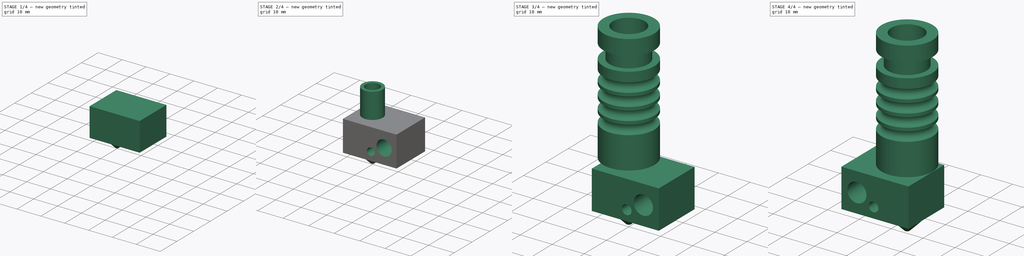
[diagram: build sequence overview — one tinted view per stage of 4, left to right]
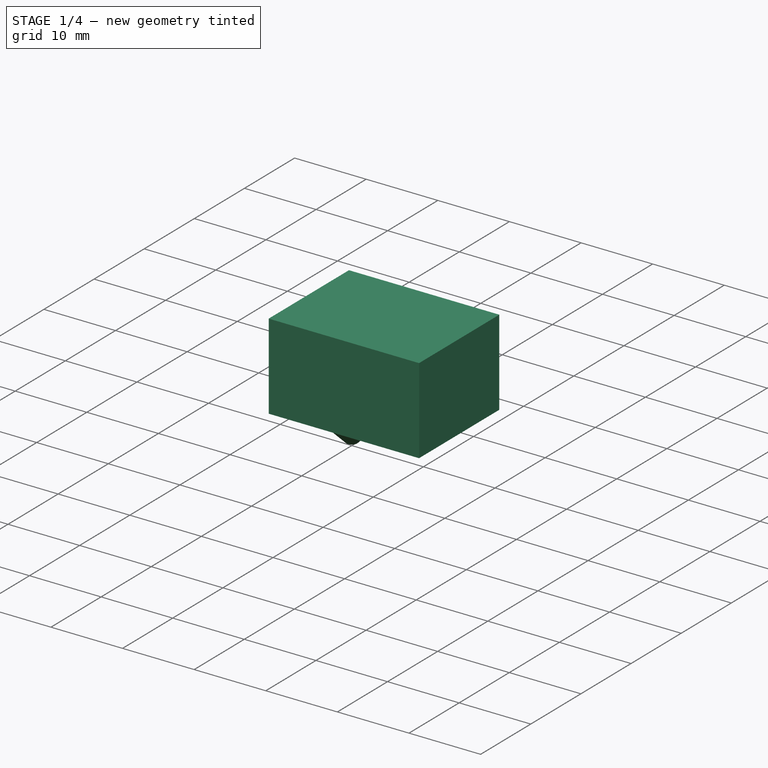
[diagram: stage 1 of 4 — iso view after this stage's code; geometry added in this stage tinted green]
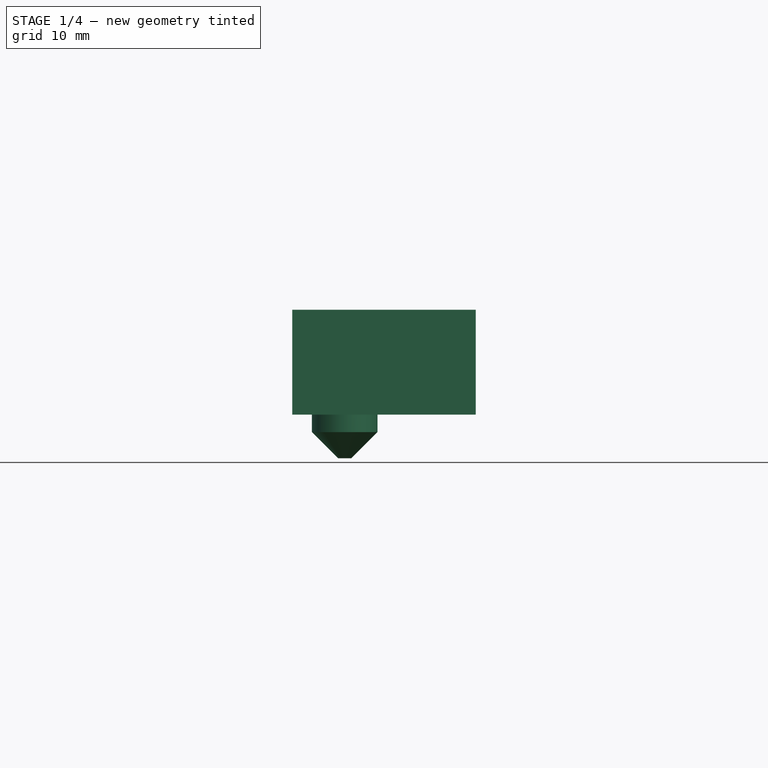
[diagram: stage 1 of 4 — front view after this stage's code; geometry added in this stage tinted green]
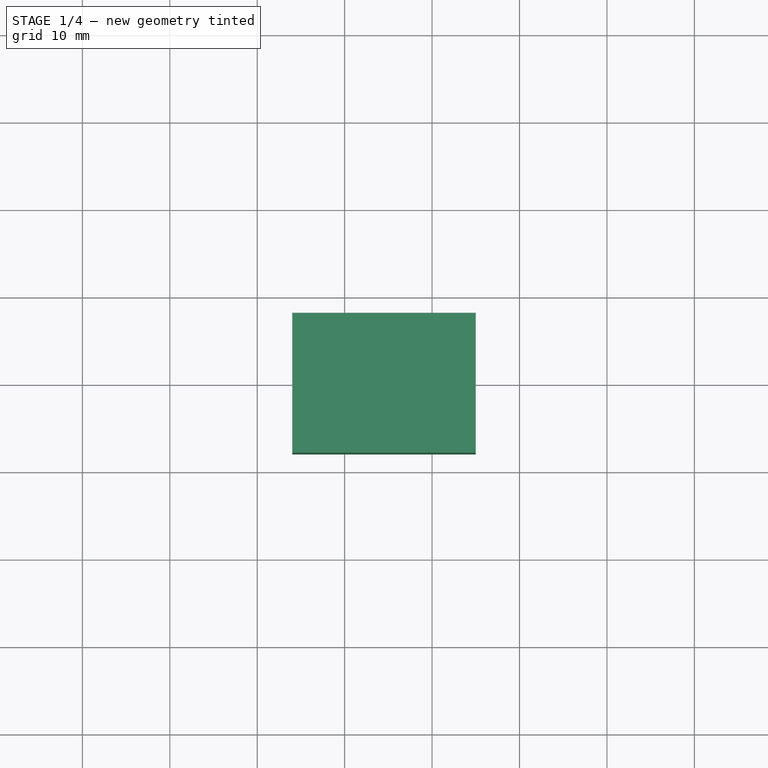
[diagram: stage 1 of 4 — top view after this stage's code; geometry added in this stage tinted green]
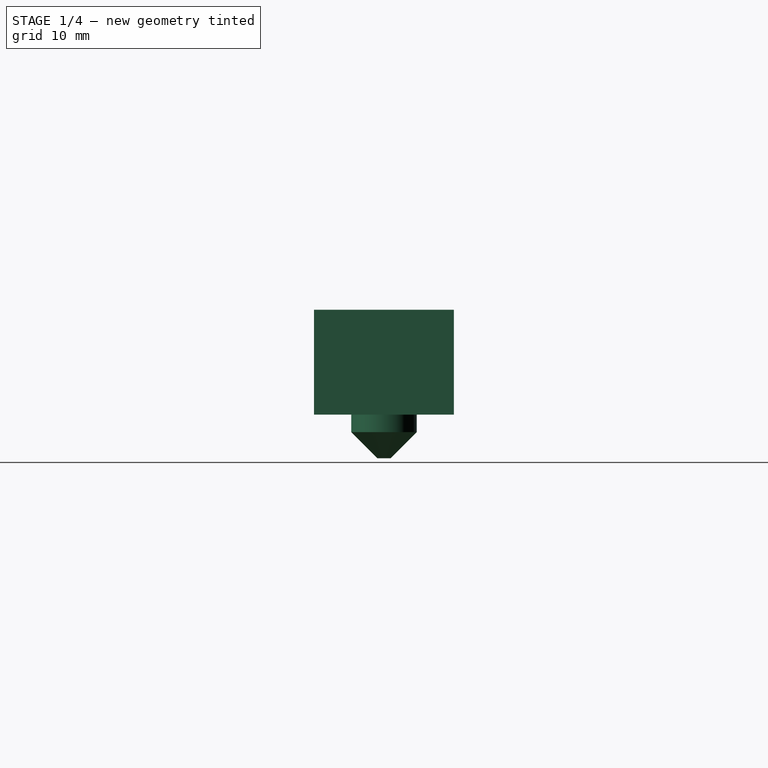
[diagram: stage 1 of 4 — right view after this stage's code; geometry added in this stage tinted green]
FCSTD DOCUMENT  (FreeCAD 0.15R3904 (Git))
Label: hotend
License: CC-BY 3.0
LicenseURL: http://creativecommons.org/licenses/by/3.0/
objects: Sketcher::SketchObject×6, PartDesign::Pocket×3, App::DocumentObjectGroup×3, Part::FeaturePython×3, PartDesign::Pad×2, Part::Box×1, PartDesign::Revolution×1, PartDesign::Chamfer×1, Part::MultiFuse×1
note: 24 computed .brp shape members not serialized (recipe doc carries the construction recipe); baked Part::Feature solids carry a one-line shape summary decoded from their .brp

FEATURE [Part::Box] Box  label="Cubo001"
  Height = 12
  Length = 21
  Placement = pos=(-6,-8,-15) rot=(0,0,1;0rad)
  Width = 16
FEATURE [PartDesign::Pad] Pad
  Length = 5
  Length2 = 100
  Placement = pos=(-6,-8,-15) rot=(0,0,1;0rad)
  Sketch = -> Sketch
  Type = 0
FEATURE [PartDesign::Chamfer] Chamfer
  Base = -> Pad [Edge15]
  Placement = pos=(-6,-8,-15) rot=(0,0,1;0rad)
  Size = 3
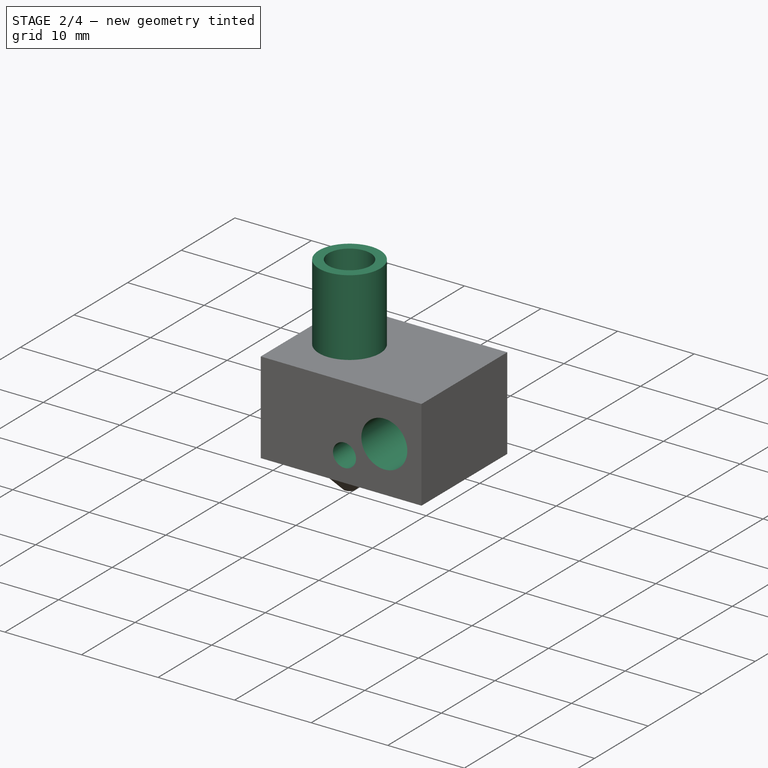
[diagram: stage 2 of 4 — iso view after this stage's code; geometry added in this stage tinted green]
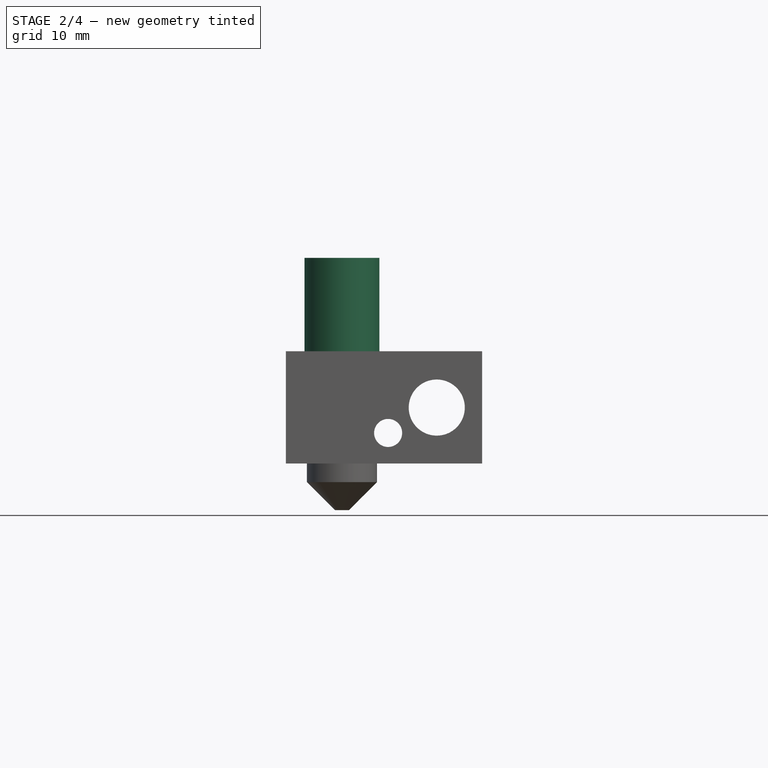
[diagram: stage 2 of 4 — front view after this stage's code; geometry added in this stage tinted green]
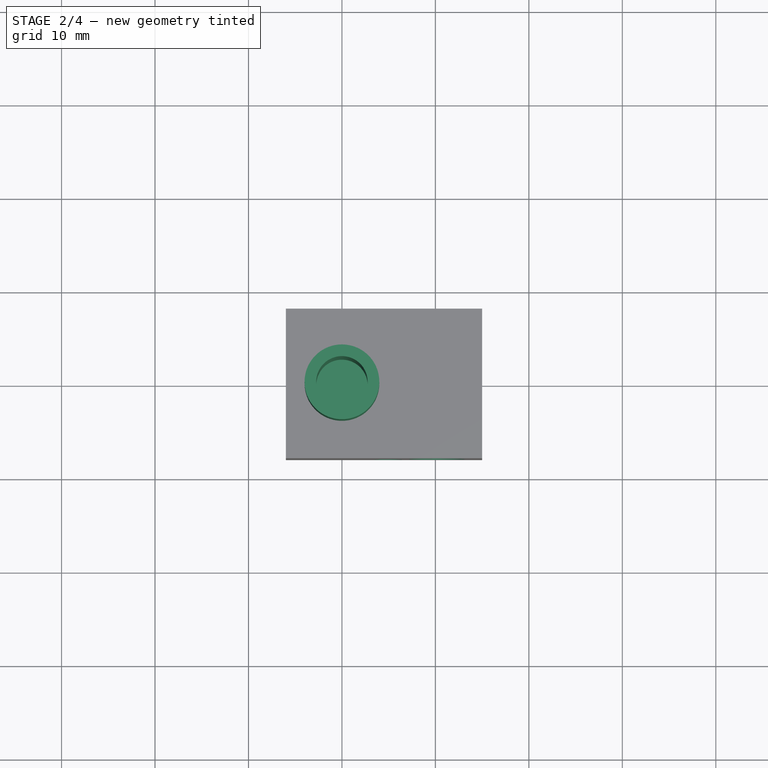
[diagram: stage 2 of 4 — top view after this stage's code; geometry added in this stage tinted green]
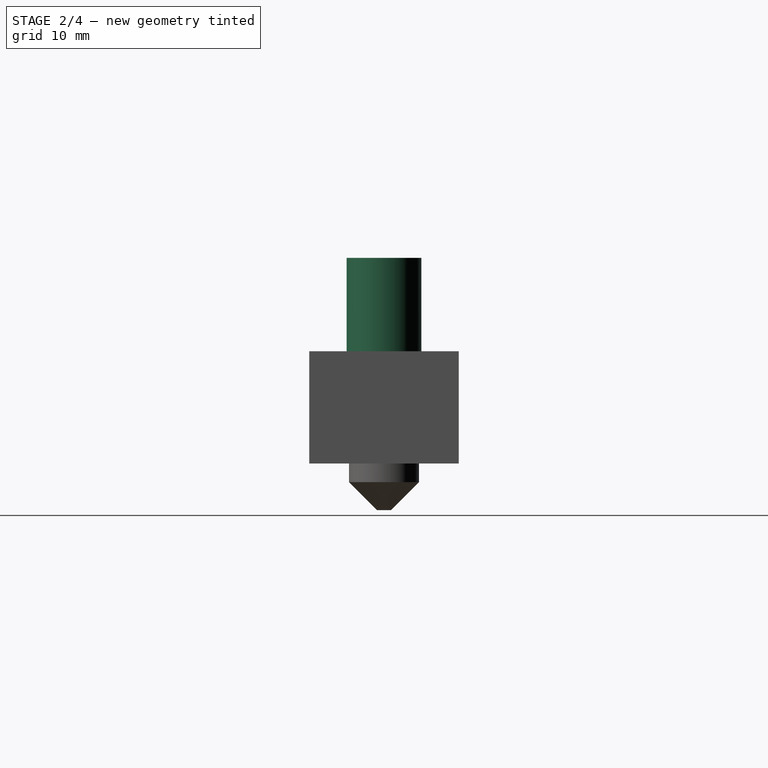
[diagram: stage 2 of 4 — right view after this stage's code; geometry added in this stage tinted green]
FEATURE [Sketcher::SketchObject] Sketch002
  ExternalGeometry = -> [Chamfer]
  Placement = pos=(-6,-8,-3) rot=(0,0,1;0rad)
  Support = -> Chamfer [Face9]
  sketch-geometry (3):
    g0: LineSegment [constr] StartX=6 StartY=16 StartZ=0 EndX=6 EndY=8 EndZ=0
    g1: LineSegment [constr] StartX=6 StartY=8 StartZ=0 EndX=6 EndY=0 EndZ=0
    g2: Circle CenterX=6 CenterY=8 CenterZ=0 NormalX=0 NormalY=0 NormalZ=1 Radius=4
  constraints (9):
    c: PointOnObject(g0,g-3)
    c: Vertical(g0)
    c: Coincident(g0,g1)
    c: PointOnObject(g1,g-4)
    c: Vertical(g1)
    c: Equal(g1,g0)
    c: Coincident(g2,g0)
    c: Distance(g0,g-5) = 6
    c: Radius(g2) = 4
FEATURE [PartDesign::Pad] Pad001
  Length = 10
  Length2 = 100
  Placement = pos=(-6,-8,-15) rot=(0,0,1;0rad)
  Sketch = -> Sketch002
  Type = 0
FEATURE [Sketcher::SketchObject] Sketch003
  Placement = pos=(-6,8,-15) rot=(0,0.707107,0.707107;3.14159rad)
  Support = -> Pad001 [Face5]
  sketch-geometry (2):
    g0: Circle CenterX=-16.1455 CenterY=5.9778 CenterZ=0 NormalX=0 NormalY=0 NormalZ=1 Radius=3
    g1: Circle CenterX=-10.941 CenterY=3.2623 CenterZ=0 NormalX=0 NormalY=0 NormalZ=1 Radius=1.5
  constraints (2):
    c: Radius(g0) = 3
    c: Radius(g1) = 1.5
FEATURE [PartDesign::Pocket] Pocket
  Length = 16
  Placement = pos=(-6,-8,-15) rot=(0,0,1;0rad)
  Sketch = -> Sketch003
  Type = 0
FEATURE [Sketcher::SketchObject] Sketch004
  ExternalGeometry = -> [Pocket]
  Placement = pos=(-6,-8,7) rot=(0,0,1;0rad)
  Support = -> Pocket [Face1]
  sketch-geometry (1):
    g0: Circle CenterX=6 CenterY=8 CenterZ=0 NormalX=0 NormalY=0 NormalZ=1 Radius=2.75
  constraints (2):
    c: Coincident(g0,g-3)
    c: Radius(g0) = 2.75
FEATURE [PartDesign::Pocket] Pocket001
  Length = 22
  Placement = pos=(-6,-8,-15) rot=(0,0,1;0rad)
  Sketch = -> Sketch004
  Type = 0
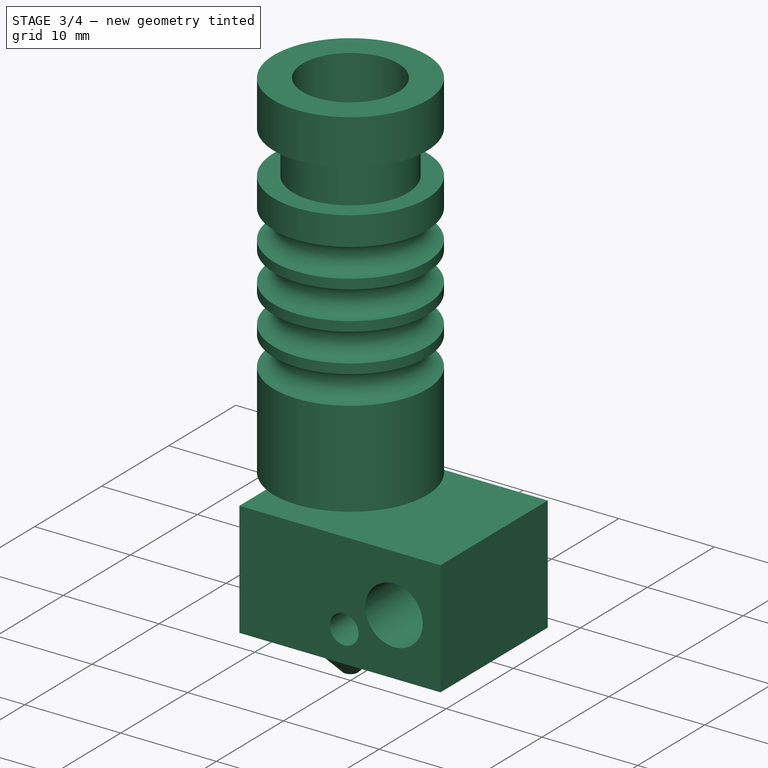
[diagram: stage 3 of 4 — iso view after this stage's code; geometry added in this stage tinted green]
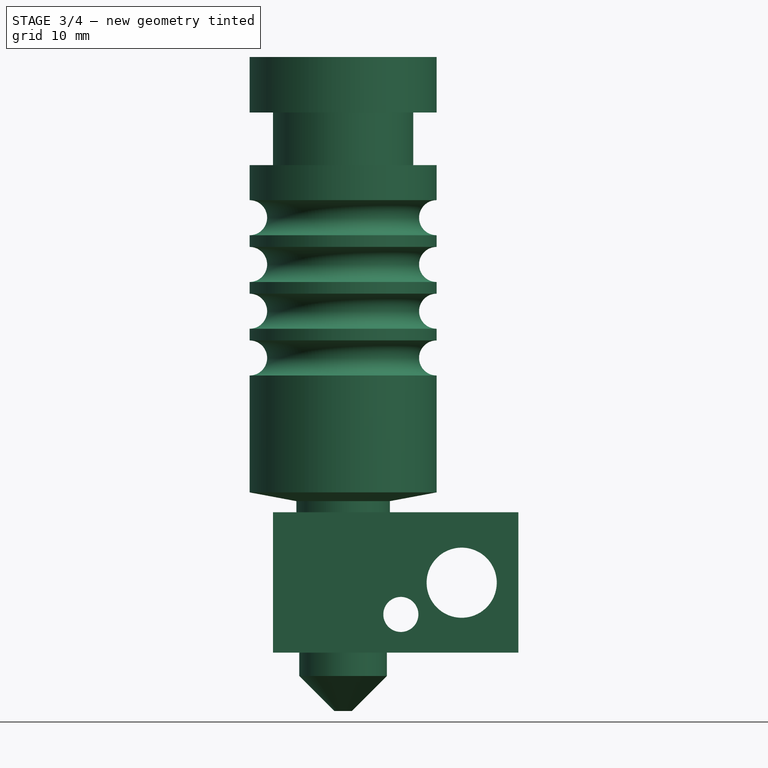
[diagram: stage 3 of 4 — front view after this stage's code; geometry added in this stage tinted green]
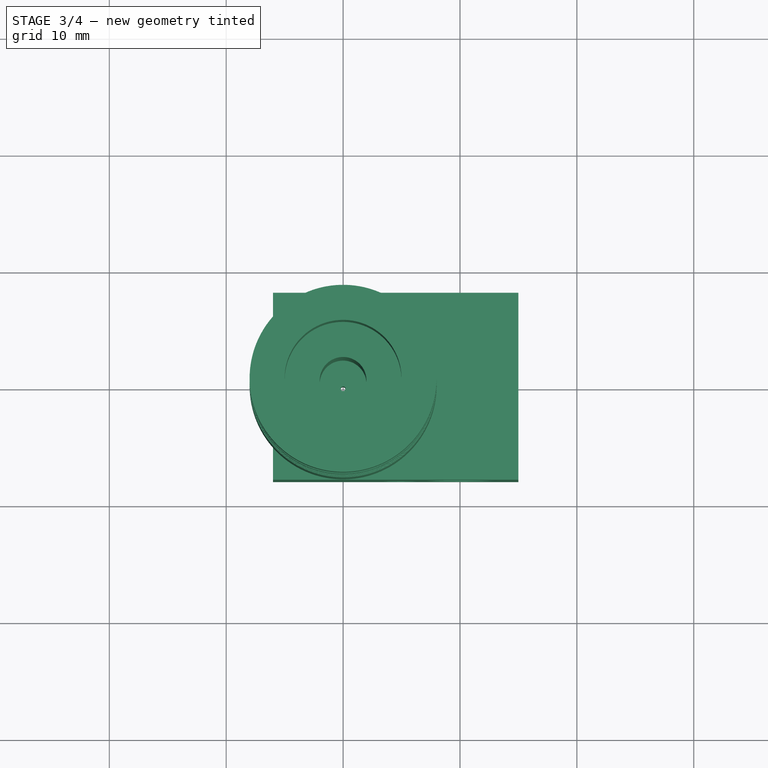
[diagram: stage 3 of 4 — top view after this stage's code; geometry added in this stage tinted green]
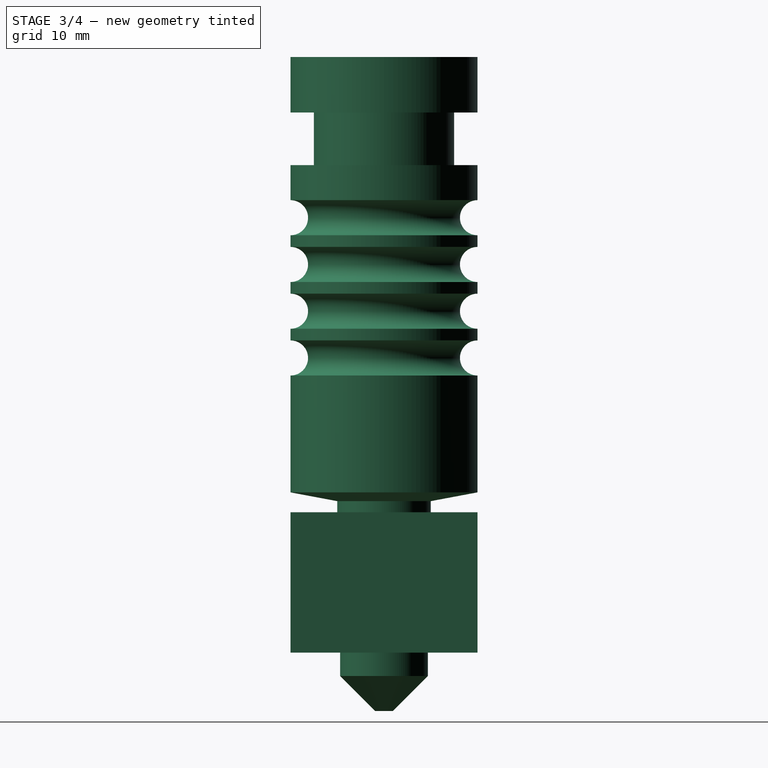
[diagram: stage 3 of 4 — right view after this stage's code; geometry added in this stage tinted green]
FEATURE [Sketcher::SketchObject] Sketch
  ExternalGeometry = -> [Box]
  Placement = pos=(-6,-8,-15) rot=(1,0,0;3.14159rad)
  Support = -> Box [Face5]
  sketch-geometry (3):
    g0: Circle CenterX=6 CenterY=-8 CenterZ=0 NormalX=0 NormalY=0 NormalZ=1 Radius=3.75
    g1: LineSegment [constr] StartX=6 StartY=-8 StartZ=0 EndX=6 EndY=0 EndZ=0
    g2: LineSegment [constr] StartX=6 StartY=-8 StartZ=0 EndX=6 EndY=-16 EndZ=0
  constraints (9):
    c: Radius(g0) = 3.75
    c: Distance(g0,g-4) = 6
    c: Coincident(g1,g0)
    c: PointOnObject(g1,g-3)
    c: Vertical(g1)
    c: Coincident(g2,g0)
    c: PointOnObject(g2,g-5)
    c: Vertical(g2)
    c: Equal(g1,g2)
FEATURE [Sketcher::SketchObject] Sketch001
  Placement = pos=(0,0,0) rot=(1,0,0;1.5708rad)
  sketch-geometry (25):
    g0: LineSegment StartX=5 StartY=51.9549 StartZ=0 EndX=8 EndY=51.9549 EndZ=0
    g1: LineSegment StartX=8 StartY=51.9549 StartZ=0 EndX=8 EndY=47.2049 EndZ=0
    g2: LineSegment StartX=8 StartY=47.2049 StartZ=0 EndX=6 EndY=47.2049 EndZ=0
    g3: LineSegment StartX=6 StartY=47.2049 StartZ=0 EndX=6 EndY=42.7049 EndZ=0
    g4: LineSegment StartX=6 StartY=42.7049 StartZ=0 EndX=8 EndY=42.7049 EndZ=0
    g5: LineSegment StartX=8 StartY=14.7049 StartZ=0 EndX=4 EndY=13.9549 EndZ=0
    g6: LineSegment [constr] StartX=4 StartY=13.9549 StartZ=0 EndX=0 EndY=13.9549 EndZ=0
    g7: ArcOfCircle CenterX=8 CenterY=38.2049 CenterZ=0 NormalX=0 NormalY=0 NormalZ=1 Radius=1.5 StartAngle=1.5708 EndAngle=4.71239
    g8: ArcOfCircle CenterX=8 CenterY=34.2049 CenterZ=0 NormalX=0 NormalY=0 NormalZ=1 Radius=1.5 StartAngle=1.5708 EndAngle=4.71239
    g9: ArcOfCircle CenterX=8 CenterY=30.2049 CenterZ=0 NormalX=0 NormalY=0 NormalZ=1 Radius=1.5 StartAngle=1.5708 EndAngle=4.71239
    g10: ArcOfCircle CenterX=8 CenterY=26.2049 CenterZ=0 NormalX=0 NormalY=0 NormalZ=1 Radius=1.5 StartAngle=1.5708 EndAngle=4.71239
    g11: LineSegment StartX=8 StartY=42.7049 StartZ=0 EndX=8 EndY=39.7049 EndZ=0
    g12: LineSegment [constr] StartX=8 StartY=39.7049 StartZ=0 EndX=8 EndY=36.7049 EndZ=0
    g13: LineSegment StartX=8 StartY=36.7049 StartZ=0 EndX=8 EndY=35.7049 EndZ=0
    g14: LineSegment [constr] StartX=8 StartY=35.7049 StartZ=0 EndX=8 EndY=32.7049 EndZ=0
    g15: LineSegment StartX=8 StartY=32.7049 StartZ=0 EndX=8 EndY=31.7049 EndZ=0
    g16: LineSegment [constr] StartX=8 StartY=31.7049 StartZ=0 EndX=8 EndY=28.7049 EndZ=0
    g17: LineSegment StartX=8 StartY=28.7049 StartZ=0 EndX=8 EndY=27.7049 EndZ=0
    g18: LineSegment [constr] StartX=8 StartY=27.7049 StartZ=0 EndX=8 EndY=24.7049 EndZ=0
    g19: LineSegment StartX=8 StartY=24.7049 StartZ=0 EndX=8 EndY=14.7049 EndZ=0
    g20: LineSegment StartX=4 StartY=13.9549 StartZ=0 EndX=4 EndY=23.9549 EndZ=0
    g21: LineSegment StartX=4 StartY=23.9549 StartZ=0 EndX=2 EndY=23.9549 EndZ=0
    g22: LineSegment StartX=2 StartY=23.9549 StartZ=0 EndX=2 EndY=41.9549 EndZ=0
    g23: LineSegment StartX=2 StartY=41.9549 StartZ=0 EndX=5 EndY=41.9549 EndZ=0
    g24: LineSegment StartX=5 StartY=41.9549 StartZ=0 EndX=5 EndY=51.9549 EndZ=0
  constraints (73):
    c: Horizontal(g0)
    c: Coincident(g0,g1)
    c: Vertical(g1)
    c: Coincident(g1,g2)
    c: Horizontal(g2)
    c: Coincident(g2,g3)
    c: Vertical(g3)
    c: Coincident(g3,g4)
    c: Horizontal(g4)
    c: Coincident(g6,g5)
    c: Horizontal(g6)
    c: Equal(g2,g4)
    c: Distance(g1) = 4.75
    c: Distance(g3) = 4.5
    c: Distance(g6) = 4
    c: Equal(g10,g9)
    c: Equal(g9,g8)
    c: Equal(g8,g7)
    c: Coincident(g4,g11)
    c: Coincident(g11,g7)
    c: Vertical(g11)
    c: Coincident(g11,g12)
    c: Coincident(g12,g7)
    c: Vertical(g12)
    c: Coincident(g12,g13)
    c: Coincident(g13,g8)
    c: Coincident(g13,g14)
    c: Coincident(g14,g8)
    c: Vertical(g14)
    c: Coincident(g14,g15)
    c: Coincident(g15,g9)
    c: Vertical(g15)
    c: Coincident(g15,g16)
    c: Coincident(g16,g9)
    c: Vertical(g16)
    c: Coincident(g16,g17)
    c: Coincident(g17,g10)
    c: Vertical(g17)
    c: Coincident(g17,g18)
    c: Coincident(g18,g10)
    c: Vertical(g18)
    c: Coincident(g18,g19)
    c: Coincident(g19,g5)
    c: Vertical(g19)
    c: PointOnObject(g10,g18)
    c: PointOnObject(g9,g16)
    c: PointOnObject(g8,g14)
    c: Vertical(g13)
    c: Equal(g13,g15)
    c: Equal(g15,g17)
    c: Distance(g17) = 1
    c: Radius(g10) = 1.5
    c: Distance(g11) = 3
    c: Distance(g19) = 10
    c: PointOnObject(g7,g12)
    c: Coincident(g20,g5)
    c: Vertical(g20)
    c: Coincident(g20,g21)
    c: Horizontal(g21)
    c: Coincident(g21,g22)
    c: Vertical(g22)
    c: Coincident(g22,g23)
    c: Horizontal(g23)
    c: Coincident(g23,g24)
    c: Vertical(g24)
    c: Coincident(g0,g24)
    c: DistanceY(g0,g5) = -38
    c: DistanceX(g-2,g21) = 2
    c: DistanceX(g-2,g0) = 5
    c: Distance(g24) = 10
    c: Distance(g20) = 10
    c: DistanceX(g-2,g0) = 8
    c: DistanceX(g-2,g5) = 4
FEATURE [PartDesign::Revolution] Revolution  label="Cuerpo"
  Angle = 360
  Axis = (0,0,1)
  Base = (0,0,0)
  Placement = pos=(0,0,0) rot=(1,0,0;1.5708rad)
  ReferenceAxis = -> Sketch001 [V_Axis]
  Reversed = true
  Sketch = -> Sketch001
FEATURE [Sketcher::SketchObject] Sketch005
  ExternalGeometry = -> [Pocket001]
  Placement = pos=(-6,-8,-20) rot=(1,0,0;3.14159rad)
  Support = -> Pocket001 [Face15]
  sketch-geometry (1):
    g0: Circle CenterX=6 CenterY=-8 CenterZ=0 NormalX=0 NormalY=0 NormalZ=1 Radius=0.2
  constraints (2):
    c: Coincident(g0,g-3)
    c: Radius(g0) = 0.2
FEATURE [PartDesign::Pocket] Pocket002  label="cabezal"
  Length = 10
  Placement = pos=(-6,-8,-15) rot=(0,0,1;0rad)
  Sketch = -> Sketch005
  Type = 0
FEATURE [Part::FeaturePython] Clone001  label="Clone of cabezal"  # Draft clone (typed FeaturePython)
  Objects = -> [Pocket002]
  Placement = pos=(-6,-8,1) rot=(0,0,1;0rad)
  Scale = (1,1,1)
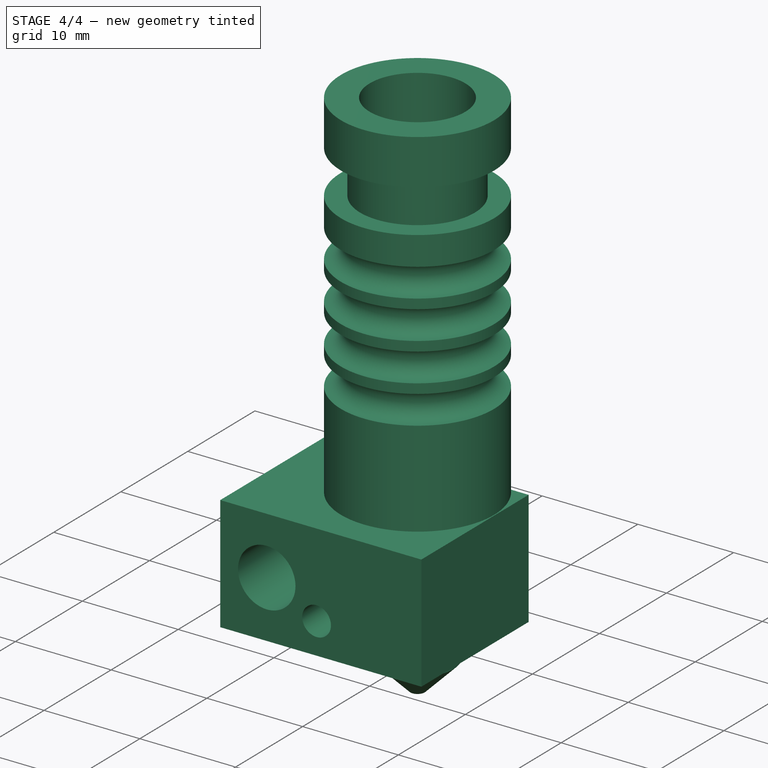
[diagram: stage 4 of 4 — iso view after this stage's code; geometry added in this stage tinted green]
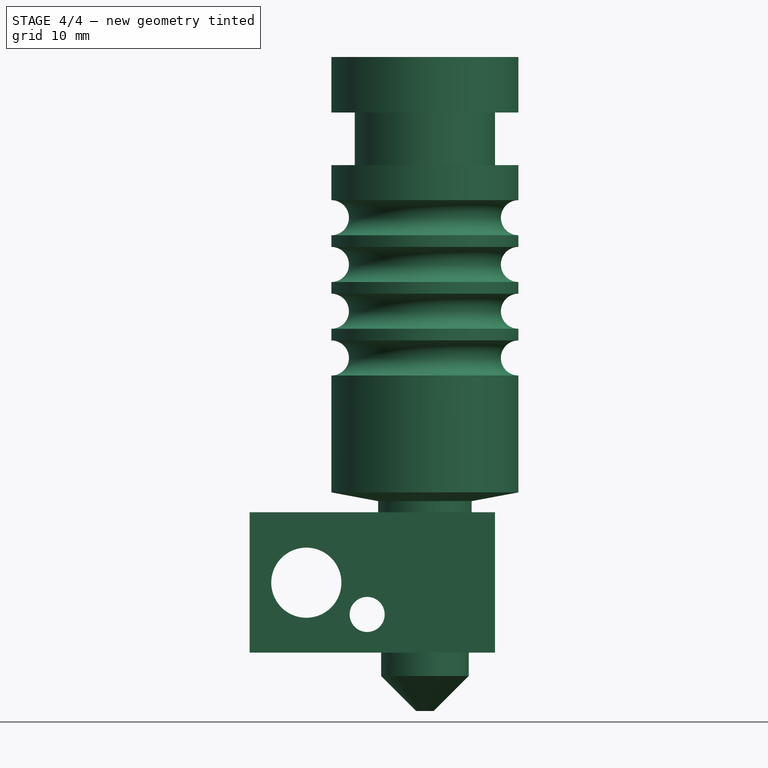
[diagram: stage 4 of 4 — front view after this stage's code; geometry added in this stage tinted green]
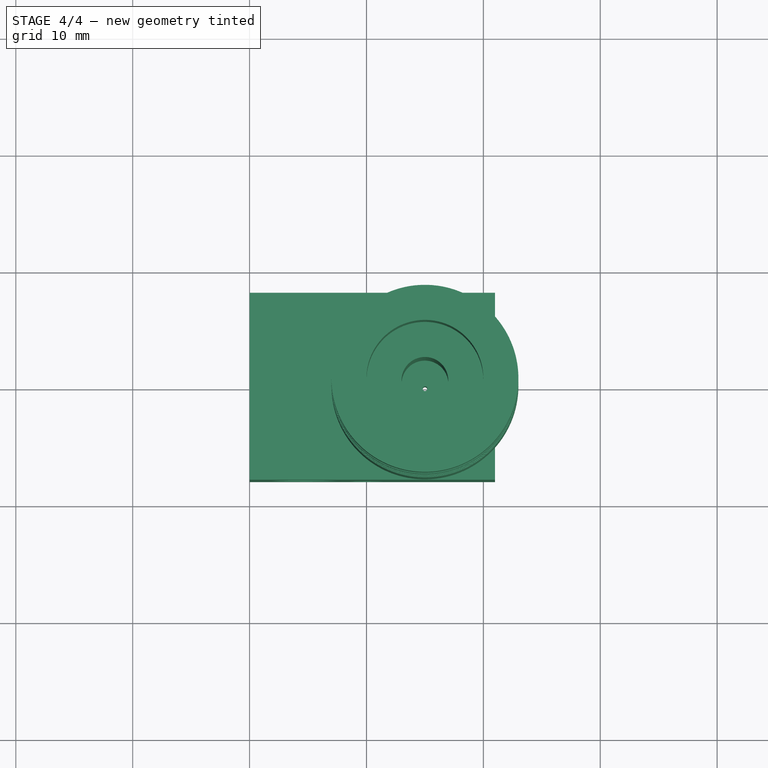
[diagram: stage 4 of 4 — top view after this stage's code; geometry added in this stage tinted green]
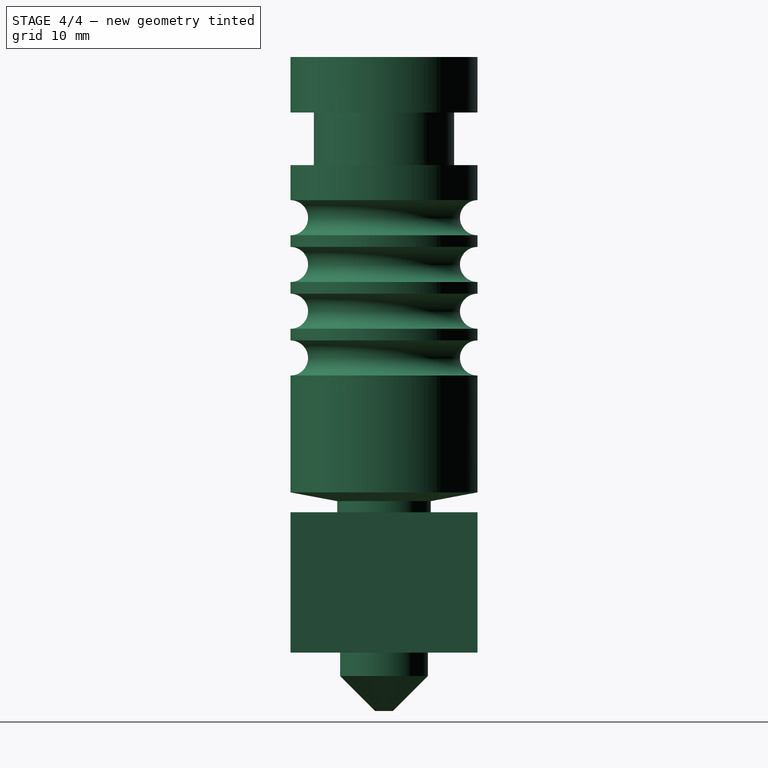
[diagram: stage 4 of 4 — right view after this stage's code; geometry added in this stage tinted green]
FEATURE [App::DocumentObjectGroup] Group  label="Cabezal"
  Group = -> [Box,Pad,Chamfer,Pad001,Pocket,Pocket001,Pocket002]
FEATURE [App::DocumentObjectGroup] Group001  label="Ingredientes"
  Group = -> [Revolution,Group]
FEATURE [App::DocumentObjectGroup] Grupo  label="Jhead mk5"
  Group = -> [Group001]
FEATURE [Part::FeaturePython] Clone  label="Clone of Cuerpo"  # Draft clone (typed FeaturePython)
  Objects = -> [Revolution]
  Placement = pos=(0,0,0) rot=(1,0,0;1.5708rad)
  Scale = (1,1,1)
FEATURE [Part::MultiFuse] Fusion  label="JheadMk5"
  Shapes = -> [Clone001,Clone]
FEATURE [Part::FeaturePython] Clone002  label="Clone of JheadMk5"  # Draft clone (typed FeaturePython)
  Objects = -> [Fusion]
  Placement = pos=(-25,0,0) rot=(0,0,1;3.14159rad)
  Scale = (1,1,1)
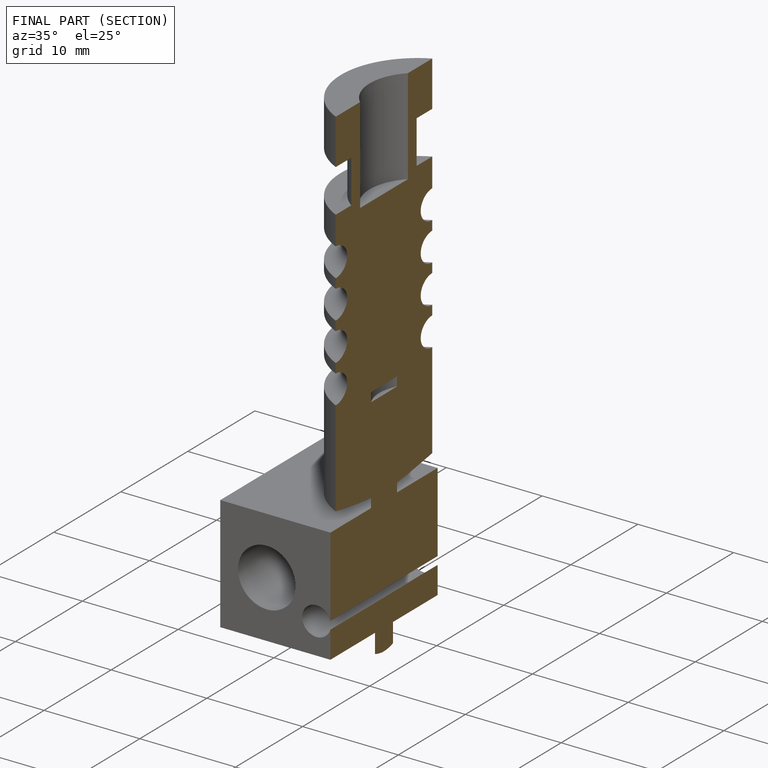
[diagram: finished part — half-section view (interior)]
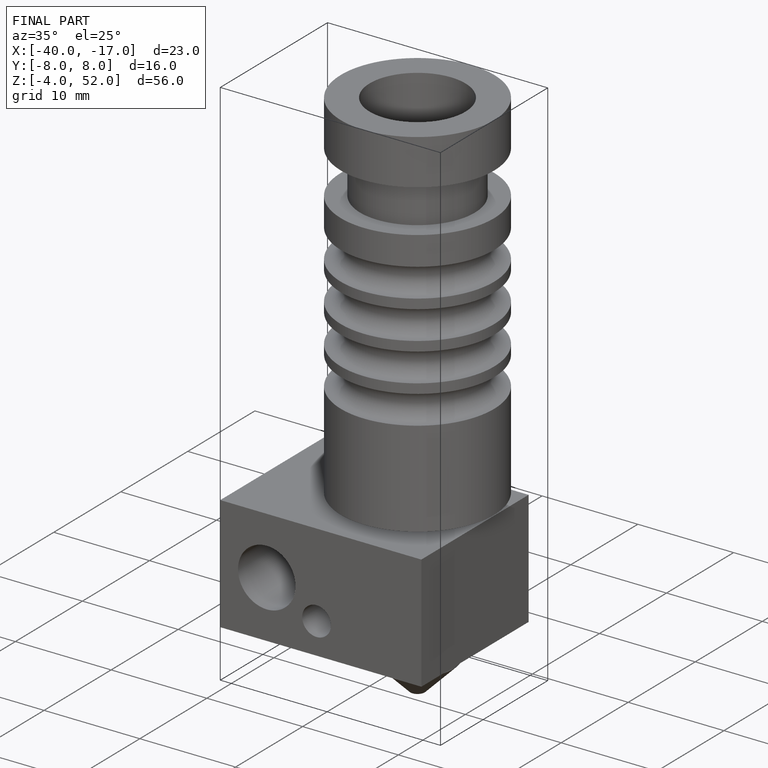
[diagram: finished part — iso view with bounding-box wireframe]
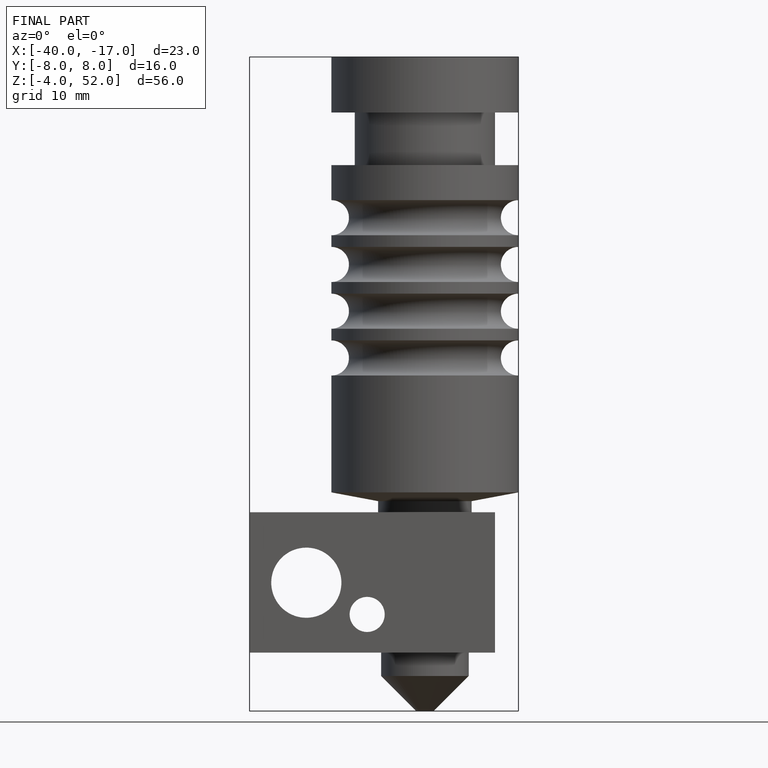
[diagram: finished part — front view with bounding-box wireframe]
